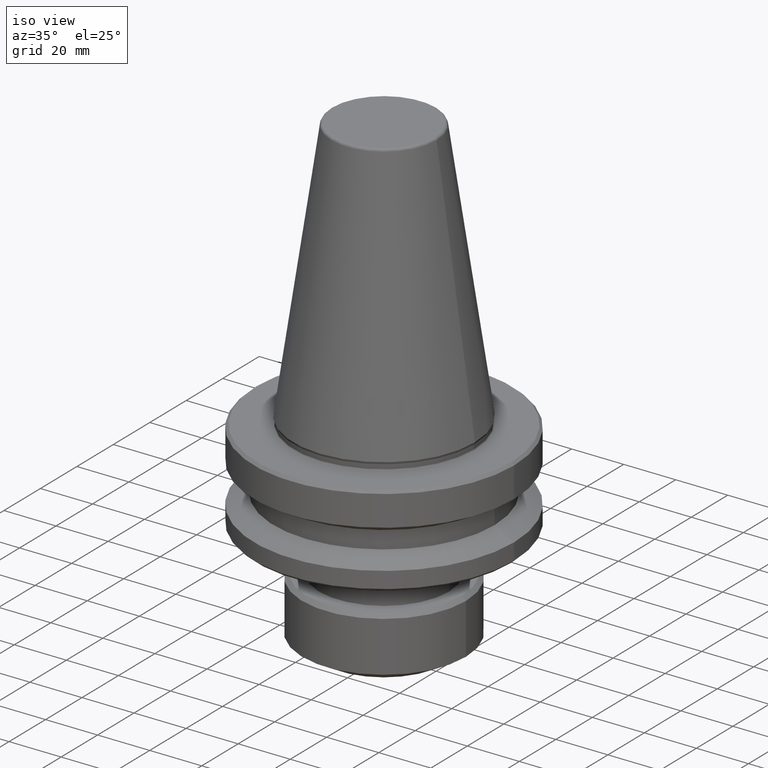
[diagram: clean part render]
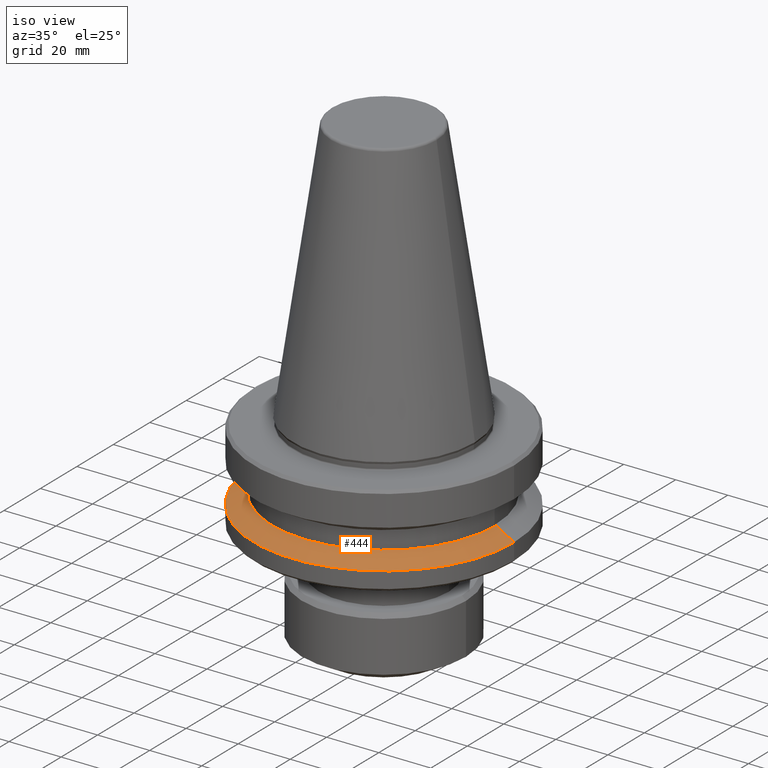
[diagram: same view with one face highlighted and labeled with its STEP entity id]
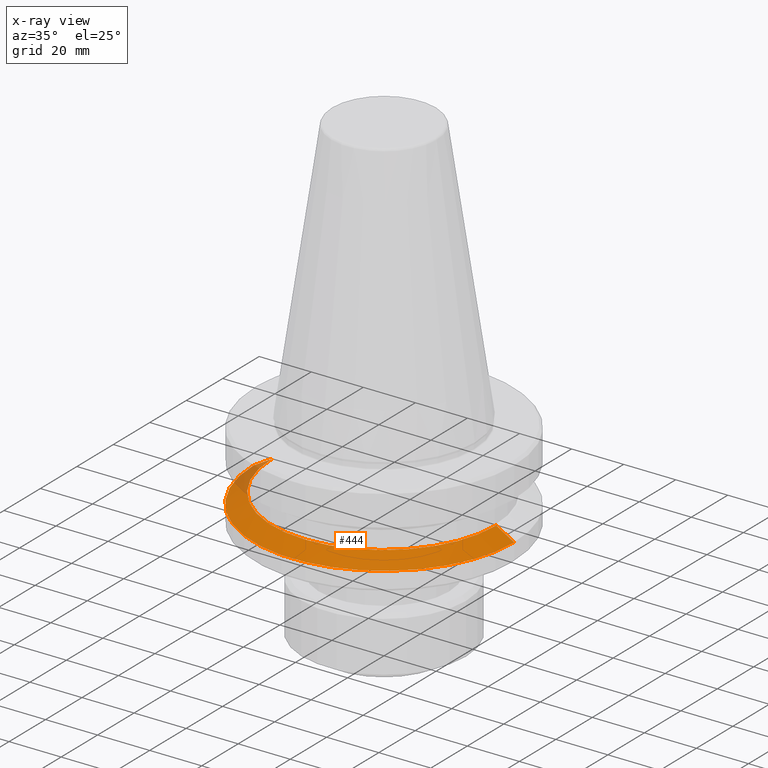
[diagram: x-ray of the same camera — body ghosted, the highlighted face saturated]
A machine part, iso view. The second image highlights one B-rep face of the part: STEP entity #444.
The next image is the same camera in x-ray: the body ghosted, the highlighted face saturated — about 5% of this face is hidden behind the body in this view.
In plain terms, the highlighted conical surface has half-angle 60 deg.
Its self-contained STEP definition (entity closure, byte-faithful):
#60 = CARTESIAN_POINT ( 'NONE',  ( 0.0000000000000000000, 0.0000000000000000000, -30.69977999677488300 ) ) ;
#72 = DIRECTION ( 'NONE',  ( -0.0000000000000000000, -0.0000000000000000000, 1.000000000000000000 ) ) ;
#87 = AXIS2_PLACEMENT_3D ( 'NONE', #611, #72, #708 ) ;
#104 = CARTESIAN_POINT ( 'NONE',  ( 43.07217782648942300, 5.699027233244172700E-015, -26.70000000000073800 ) ) ;
#109 = DIRECTION ( 'NONE',  ( -0.8660254037844390400, 0.0000000000000000000, -0.4999999999999993300 ) ) ;
#135 = VERTEX_POINT ( 'NONE', #929 ) ;
#145 = DIRECTION ( 'NONE',  ( -0.0000000000000000000, -0.0000000000000000000, 1.000000000000000000 ) ) ;
#249 = CIRCLE ( 'NONE', #935, 49.99999999999993600 ) ;
#302 = CONICAL_SURFACE ( 'NONE', #982, 49.99999999999993600, 1.047197551196598500 ) ;
#327 = FACE_OUTER_BOUND ( 'NONE', #499, .T. ) ;
#335 = CARTESIAN_POINT ( 'NONE',  ( -49.99999999999993600, 6.123233995736758200E-015, -30.69977999677488300 ) ) ;
#438 = ORIENTED_EDGE ( 'NONE', *, *, #1130, .T. ) ;
#444 = ADVANCED_FACE ( 'NONE', ( #327 ), #302, .T. ) ;
#453 = DIRECTION ( 'NONE',  ( 0.0000000000000000000, 0.0000000000000000000, -1.000000000000000000 ) ) ;
#463 = VERTEX_POINT ( 'NONE', #779 ) ;
#499 = EDGE_LOOP ( 'NONE', ( #528, #638, #438, #577 ) ) ;
#526 = DIRECTION ( 'NONE',  ( 0.8660254037844390400, 1.060575238724907400E-016, -0.4999999999999993300 ) ) ;
#528 = ORIENTED_EDGE ( 'NONE', *, *, #972, .F. ) ;
#531 = VECTOR ( 'NONE', #526, 1000.000000000000000 ) ;
#562 = VECTOR ( 'NONE', #109, 1000.000000000000000 ) ;
#577 = ORIENTED_EDGE ( 'NONE', *, *, #788, .T. ) ;
#611 = CARTESIAN_POINT ( 'NONE',  ( 0.0000000000000000000, 0.0000000000000000000, -26.70000000000073800 ) ) ;
#638 = ORIENTED_EDGE ( 'NONE', *, *, #941, .F. ) ;
#683 = CARTESIAN_POINT ( 'NONE',  ( 0.0000000000000000000, 0.0000000000000000000, -30.69977999677488300 ) ) ;
#708 = DIRECTION ( 'NONE',  ( 1.000000000000000000, 0.0000000000000000000, 0.0000000000000000000 ) ) ;
#769 = DIRECTION ( 'NONE',  ( 1.000000000000000000, 0.0000000000000000000, 0.0000000000000000000 ) ) ;
#779 = CARTESIAN_POINT ( 'NONE',  ( -43.07217782648942300, 0.0000000000000000000, -26.70000000000073800 ) ) ;
#788 = EDGE_CURVE ( 'NONE', #883, #135, #249, .T. ) ;
#795 = CARTESIAN_POINT ( 'NONE',  ( 49.99999999999993600, 6.123233995736758200E-015, -30.69977999677488300 ) ) ;
#798 = LINE ( 'NONE', #1012, #562 ) ;
#808 = DIRECTION ( 'NONE',  ( -1.000000000000000000, 0.0000000000000000000, 0.0000000000000000000 ) ) ;
#883 = VERTEX_POINT ( 'NONE', #335 ) ;
#929 = CARTESIAN_POINT ( 'NONE',  ( 49.99999999999993600, 0.0000000000000000000, -30.69977999677488300 ) ) ;
#935 = AXIS2_PLACEMENT_3D ( 'NONE', #683, #145, #769 ) ;
#941 = EDGE_CURVE ( 'NONE', #463, #1123, #1043, .T. ) ;
#972 = EDGE_CURVE ( 'NONE', #1123, #135, #1013, .T. ) ;
#982 = AXIS2_PLACEMENT_3D ( 'NONE', #60, #453, #808 ) ;
#1012 = CARTESIAN_POINT ( 'NONE',  ( -49.99999999999993600, 0.0000000000000000000, -30.69977999677488300 ) ) ;
#1013 = LINE ( 'NONE', #795, #531 ) ;
#1043 = CIRCLE ( 'NONE', #87, 43.07217782648942300 ) ;
#1123 = VERTEX_POINT ( 'NONE', #104 ) ;
#1130 = EDGE_CURVE ( 'NONE', #463, #883, #798, .T. ) ;